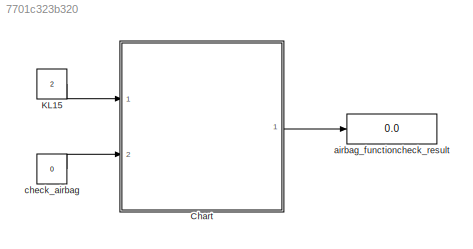
MODEL slx_7701c323b320
KIND model
CONFIG AbsTol = auto
CONFIG FixedStep = 0.1
CONFIG MaxStep = auto
CONFIG MinStep = auto
CONFIG RelTol = 1e-3
CONFIG SampleTimeConstraint = Unconstrained
CONFIG Solver = FixedStepAuto
CONFIG SolverMode = Auto
CONFIG SolverName = FixedStepAuto
CONFIG StartTime = 0.0
CONFIG StopTime = inf
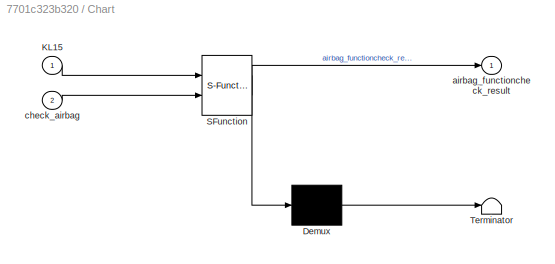
BLOCK [SubSystem] Chart
  ErrorFcn = Stateflow.Translate.translate
  PermitHierarchicalResolution = ExplicitOnly
  Ports = [2, 1]
  RequestExecContextInheritance = off
  SFBlockType = Chart
  TreatAsAtomicUnit = on
  Variant = off
BLOCK [Demux] Chart/ Demux 
  Outputs = 1
  Ports = [1, 1]
BLOCK [S-Function] Chart/ SFunction 
  EnableBusSupport = on
  FunctionName = sf_sfun
  PortCounts = [2 2]
  Ports = [2, 2]
  SFunctionDeploymentMode = off
  Tag = Stateflow S-Function airbag_statflow 3
BLOCK [Terminator] Chart/ Terminator 
BLOCK [Inport] Chart/KL15
  IconDisplay = Port number
BLOCK [Outport] Chart/airbag_functioncheck_result
  IconDisplay = Port number
BLOCK [Inport] Chart/check_airbag
  IconDisplay = Port number
  Port = 2
BLOCK [Constant] KL15
  Value = 2
BLOCK [Display] airbag_functioncheck_result
  Decimation = 1
  Ports = [1]
BLOCK [Constant] check_airbag
  Value = 0
LINE Chart:1 -> airbag_functioncheck_result:1
LINE KL15:1 -> Chart:1
LINE check_airbag:1 -> Chart:2
CHART Chart states=0 transitions=4
